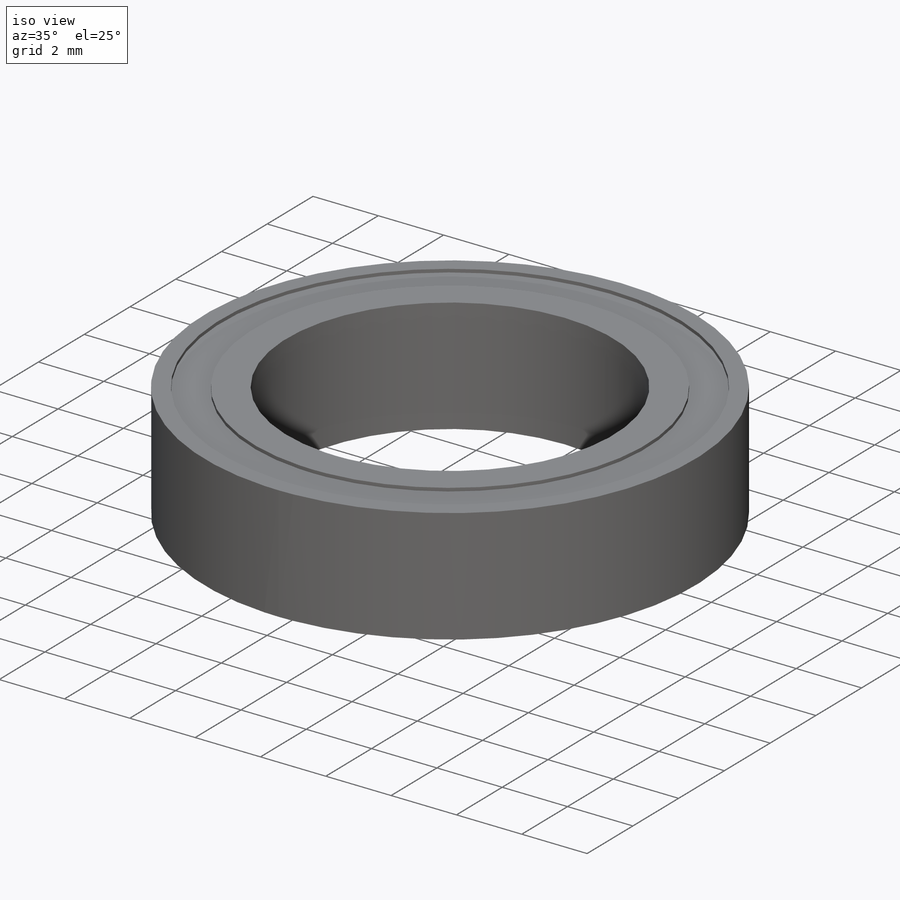
[diagram: iso view]
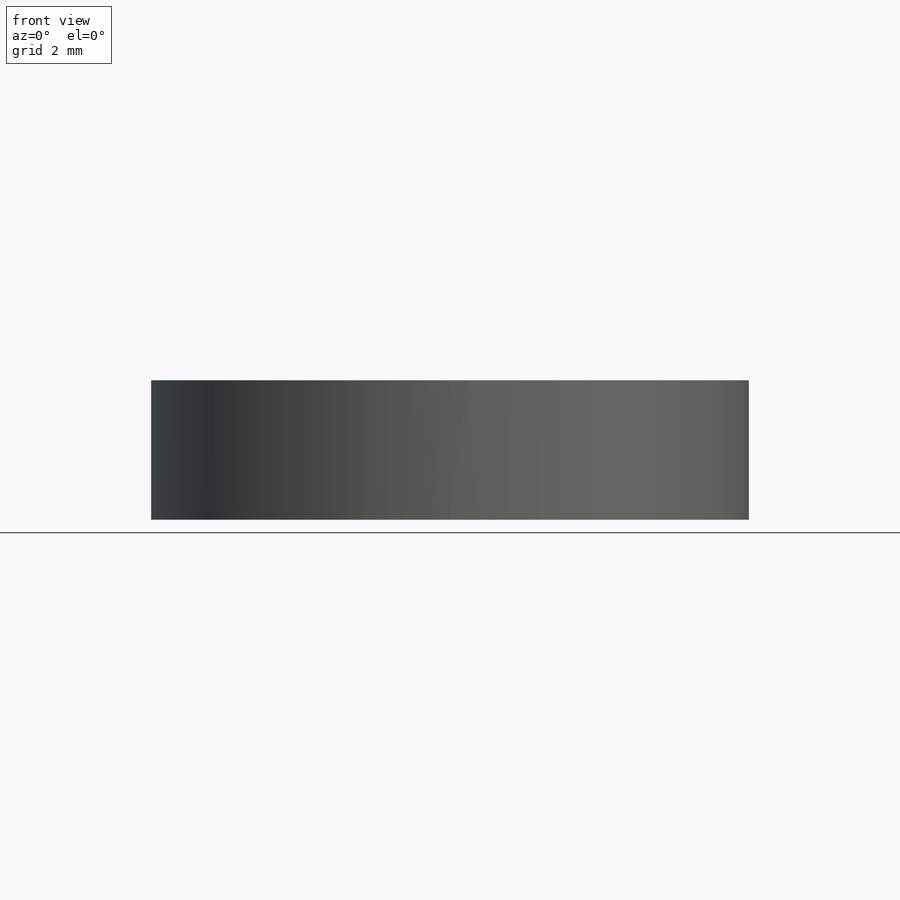
[diagram: front view]
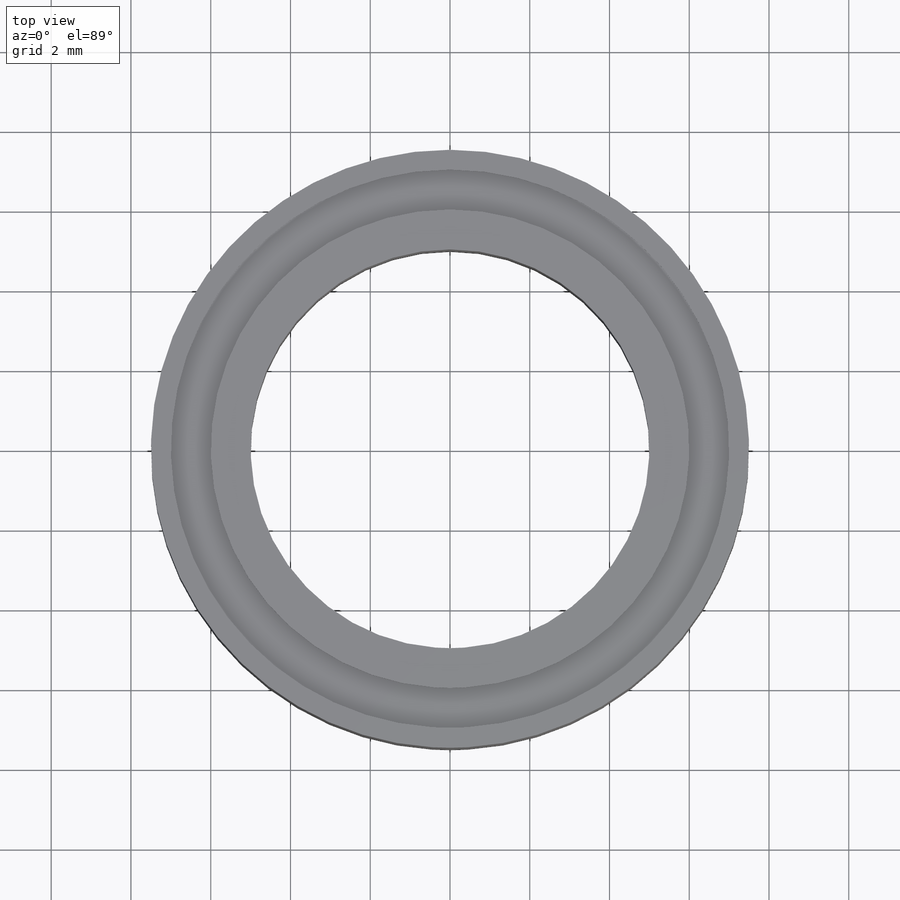
[diagram: top view]
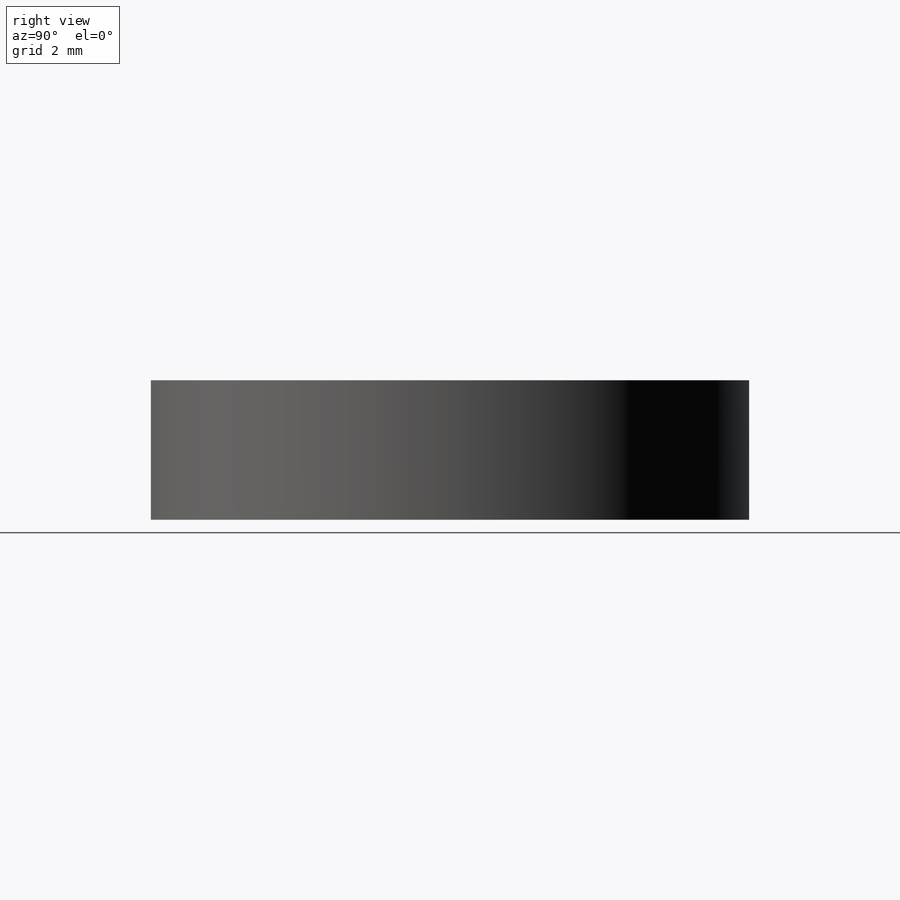
[diagram: right view]
SOLIDWORKS PART (.sldprt)
format: sldprt  version: not decoded by parser v0  size: 175,616 bytes
history: native  units: mm
features: sketch x4, extrude x3, material x1 (+13 scaffold rows collapsed)
feature tree (21):
  scaffold x13  (default folders/planes/origin — collapsed)
  material  "Material <not specified>"
  sketch  "Sketch1"  dims[D1=7.4mm]
  extrude  "Boss-Extrude1"  Depth=3.5mm
  sketch  " "  dims[c1.D2=~6.53446mm c2.D2=~6.53446mm c3.D2=~6.53446mm c4.D2=~6.53446mm c5.D2=~6.53446mm c6.D2=~6.53446mm c7.D2=~6.53446mm c8.D2=~6.53446mm c9.D2=~6.53446mm c10.D2=~6.53446mm c11.D2=~6.53446mm c12.D2=~6.53446mm c13.D2=~6.53446mm c14.D2=~6.53446mm c15.D2=~6.53446mm c16.D2=~6.53446mm c17.D2=~6.53446mm c18.D2=14.0mm c18.D3=~6.157568mm c19.D3=12.0mm c19.D1=0.1mm]
  sketch  "Sketch6"
  extrude  "Boss-Extrude4"  Depth=3.3mm
  sketch  "Sketch7"  dims[D1=~5.160009mm]
  extrude  "Boss-Extrude5"  Depth=3.5mm
decode coverage: 6 of 7 modeling features carry decoded parameters
note: ~ marks probable driven/reference dimensions
note: suppression state not decoded; provenance and decode notes live in map.json
